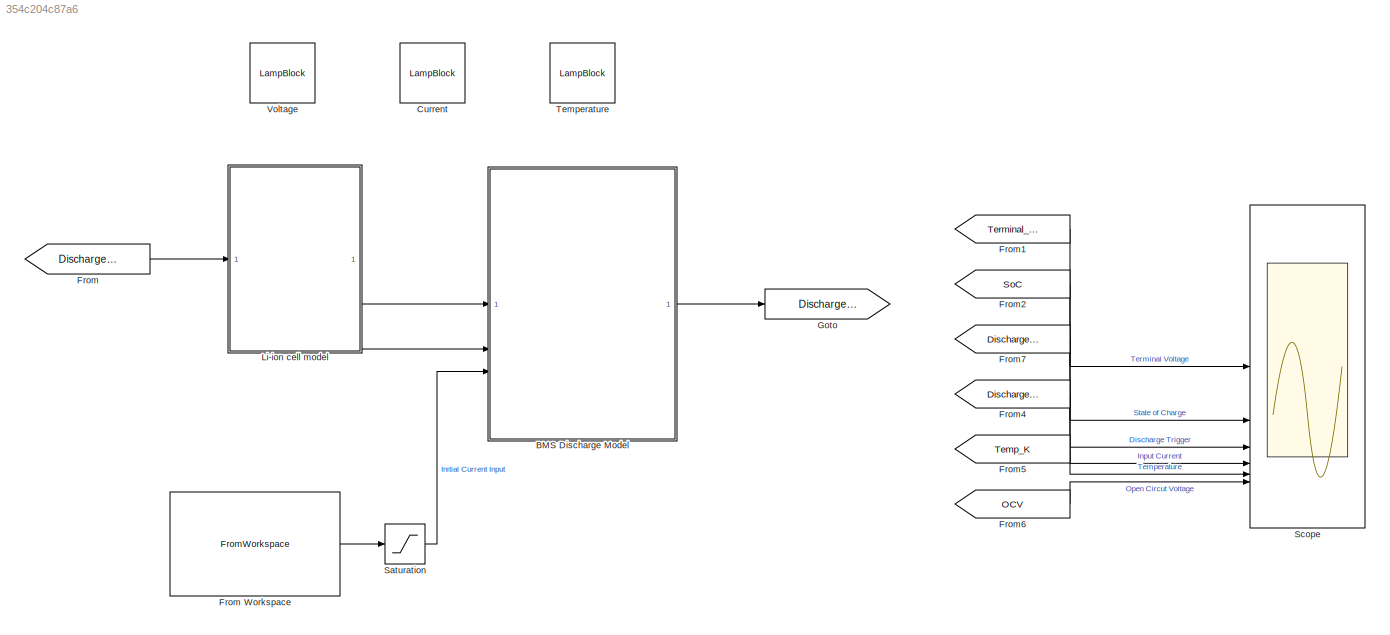
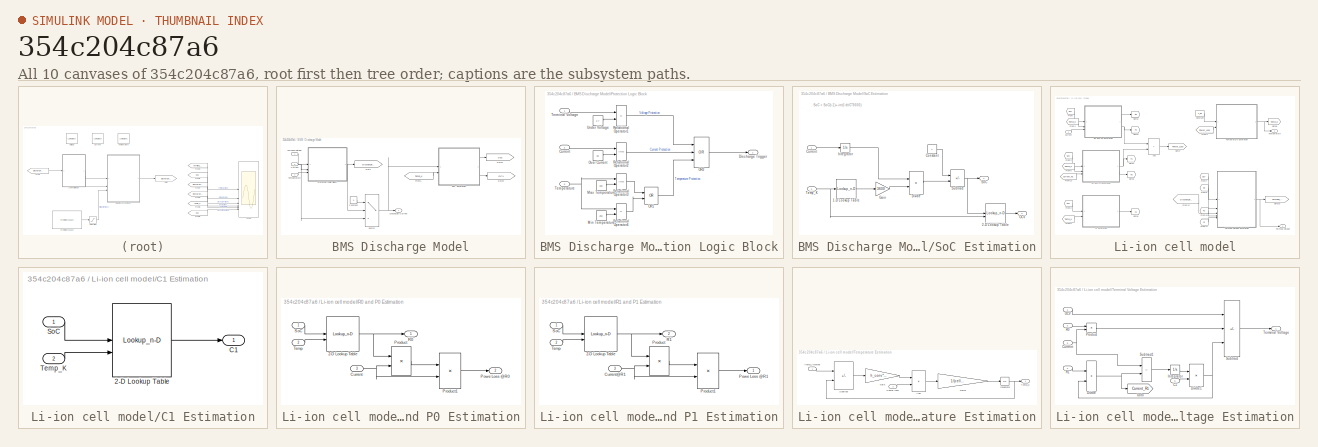
[diagram: thumbnail index - all 10 canvases of the model, root first then tree order]
MODEL slx_354c204c87a6
KIND model
CONFIG AbsTol = auto
CONFIG EnableMultiTasking = off
CONFIG FixedStep = auto
CONFIG MaxStep = auto
CONFIG MinStep = auto
CONFIG RelTol = 1e-3
CONFIG SampleTimeConstraint = Unconstrained
CONFIG SolverName = ode45
CONFIG StartTime = 0.0
CONFIG StopTime = 1180
BLOCK [SubSystem] BMS Discharge Model
BLOCK [Constant] BMS Discharge Model/Constant
  Value = 0
BLOCK [Inport] BMS Discharge Model/Current
  Port = 3
BLOCK [Outport] BMS Discharge Model/Discharge Current
BLOCK [From] BMS Discharge Model/From1
  GotoTag = Temp_K
  TagVisibility = global
BLOCK [Goto] BMS Discharge Model/Goto
  GotoTag = Discharge_Trigger
  TagVisibility = global
BLOCK [Goto] BMS Discharge Model/Goto1
  GotoTag = SoC
  TagVisibility = global
BLOCK [Goto] BMS Discharge Model/Goto2
  GotoTag = OCV
  TagVisibility = global
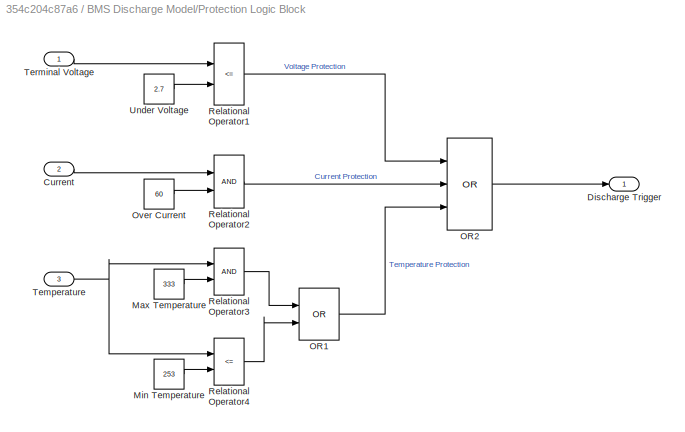
BLOCK [SubSystem] BMS Discharge Model/Protection Logic Block
BLOCK [Inport] BMS Discharge Model/Protection Logic Block/Current
  Port = 2
BLOCK [Outport] BMS Discharge Model/Protection Logic Block/Discharge Trigger
BLOCK [Constant] BMS Discharge Model/Protection Logic Block/Max Temperature
  Value = 333
BLOCK [Constant] BMS Discharge Model/Protection Logic Block/Min Temperature
  Value = 253
BLOCK [Logic] BMS Discharge Model/Protection Logic Block/OR1
  AllPortsSameDT = off
  IconShape = distinctive
  Operator = OR
  OutDataTypeStr = boolean
BLOCK [Logic] BMS Discharge Model/Protection Logic Block/OR2
  AllPortsSameDT = off
  IconShape = distinctive
  Inputs = 3
  Operator = OR
  OutDataTypeStr = boolean
BLOCK [Constant] BMS Discharge Model/Protection Logic Block/Over Current
  Value = 60
BLOCK [RelationalOperator] BMS Discharge Model/Protection Logic Block/Relational Operator1
  InputSameDT = off
  Operator = <=
  OutDataTypeStr = boolean
  RndMeth = Simplest
BLOCK [RelationalOperator] BMS Discharge Model/Protection Logic Block/Relational Operator2
  InputSameDT = off
  OutDataTypeStr = boolean
  RndMeth = Simplest
BLOCK [RelationalOperator] BMS Discharge Model/Protection Logic Block/Relational Operator3
  InputSameDT = off
  OutDataTypeStr = boolean
  RndMeth = Simplest
BLOCK [RelationalOperator] BMS Discharge Model/Protection Logic Block/Relational Operator4
  InputSameDT = off
  Operator = <=
  OutDataTypeStr = boolean
  RndMeth = Simplest
BLOCK [Inport] BMS Discharge Model/Protection Logic Block/Temperature
  Port = 3
BLOCK [Inport] BMS Discharge Model/Protection Logic Block/Terminal Voltage
BLOCK [Constant] BMS Discharge Model/Protection Logic Block/Under Voltage
  Value = 2.7
BLOCK [SubSystem] BMS Discharge Model/SoC Estimation
BLOCK [Lookup_n-D] BMS Discharge Model/SoC Estimation/1-D Lookup Table
  BreakpointsForDimension1 = Temperature_LUT
  InputPortMap = u0
  InternalRulePriority = Speed
  NumberOfTableDimensions = 1
  RndMeth = Simplest
  Table = Capacity_LUT
BLOCK [Lookup_n-D] BMS Discharge Model/SoC Estimation/2-D Lookup Table
  BreakpointsForDimension1 = SOC_LUT
  BreakpointsForDimension2 = Temperature_LUT
  InputPortMap = u0,u1
  InternalRulePriority = Speed
  RndMeth = Simplest
  Table = Em_LUT
BLOCK [Constant] BMS Discharge Model/SoC Estimation/Constant
BLOCK [Inport] BMS Discharge Model/SoC Estimation/Current
BLOCK [Product] BMS Discharge Model/SoC Estimation/Divide
  Inputs = */
BLOCK [Gain] BMS Discharge Model/SoC Estimation/Gain
  Gain = 3600
BLOCK [Integrator] BMS Discharge Model/SoC Estimation/Integrator
BLOCK [Outport] BMS Discharge Model/SoC Estimation/OCV
  Port = 2
BLOCK [Outport] BMS Discharge Model/SoC Estimation/SoC
BLOCK [Sum] BMS Discharge Model/SoC Estimation/Subtract
  IconShape = rectangular
  Inputs = +-
BLOCK [Inport] BMS Discharge Model/SoC Estimation/Temp_K
  Port = 2
BLOCK [Switch] BMS Discharge Model/Switch
  Criteria = u2 ~= 0
  InputSameDT = off
  SaturateOnIntegerOverflow = off
BLOCK [Inport] BMS Discharge Model/Temperature
  Port = 2
BLOCK [Inport] BMS Discharge Model/Terminal Voltage
BLOCK [LampBlock] Current
  LabelPosition = Hide
BLOCK [From] From
  GotoTag = Discharge_Current
  TagVisibility = global
BLOCK [FromWorkspace] From Workspace
  VariableName = Current
BLOCK [From] From1
  GotoTag = Terminal_Voltage
  TagVisibility = global
BLOCK [From] From2
  GotoTag = SoC
  TagVisibility = global
BLOCK [From] From4
  GotoTag = Discharge_Current
  TagVisibility = global
BLOCK [From] From5
  GotoTag = Temp_K
  TagVisibility = global
BLOCK [From] From6
  GotoTag = OCV
  TagVisibility = global
BLOCK [From] From7
  GotoTag = Discharge_Trigger
  TagVisibility = global
BLOCK [Goto] Goto
  GotoTag = Discharge_Current
  TagVisibility = global
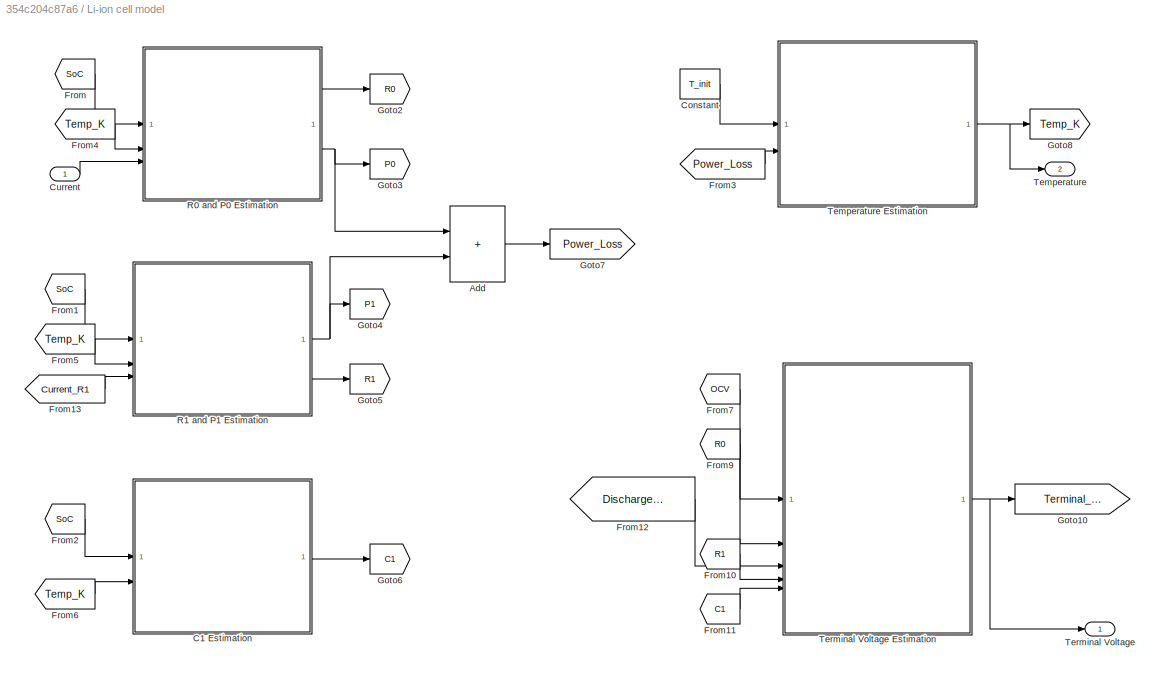
BLOCK [SubSystem] Li-ion cell model
BLOCK [Sum] Li-ion cell model/Add
  IconShape = rectangular
BLOCK [SubSystem] Li-ion cell model/C1 Estimation
BLOCK [Lookup_n-D] Li-ion cell model/C1 Estimation/2-D Lookup Table
  BreakpointsForDimension1 = SOC_LUT
  BreakpointsForDimension2 = Temperature_LUT
  InputPortMap = u0,u1
  InternalRulePriority = Speed
  RndMeth = Simplest
  Table = C1_LUT
BLOCK [Outport] Li-ion cell model/C1 Estimation/C1
BLOCK [Inport] Li-ion cell model/C1 Estimation/SoC
BLOCK [Inport] Li-ion cell model/C1 Estimation/Temp_K
  Port = 2
BLOCK [Constant] Li-ion cell model/Constant
  Value = T_init
BLOCK [Inport] Li-ion cell model/Current
BLOCK [From] Li-ion cell model/From
  GotoTag = SoC
  TagVisibility = global
BLOCK [From] Li-ion cell model/From1
  GotoTag = SoC
  TagVisibility = global
BLOCK [From] Li-ion cell model/From10
  GotoTag = R1
  TagVisibility = global
BLOCK [From] Li-ion cell model/From11
  GotoTag = C1
  TagVisibility = global
BLOCK [From] Li-ion cell model/From12
  GotoTag = Discharge_Current
  TagVisibility = global
BLOCK [From] Li-ion cell model/From13
  GotoTag = Current_R1
  TagVisibility = global
BLOCK [From] Li-ion cell model/From2
  GotoTag = SoC
  TagVisibility = global
BLOCK [From] Li-ion cell model/From3
  GotoTag = Power_Loss
  TagVisibility = global
BLOCK [From] Li-ion cell model/From4
  GotoTag = Temp_K
  TagVisibility = global
BLOCK [From] Li-ion cell model/From5
  GotoTag = Temp_K
  TagVisibility = global
BLOCK [From] Li-ion cell model/From6
  GotoTag = Temp_K
  TagVisibility = global
BLOCK [From] Li-ion cell model/From7
  GotoTag = OCV
  TagVisibility = global
BLOCK [From] Li-ion cell model/From9
  GotoTag = R0
  TagVisibility = global
BLOCK [Goto] Li-ion cell model/Goto10
  GotoTag = Terminal_Voltage
  TagVisibility = global
BLOCK [Goto] Li-ion cell model/Goto2
  GotoTag = R0
  TagVisibility = global
BLOCK [Goto] Li-ion cell model/Goto3
  GotoTag = P0
  TagVisibility = global
BLOCK [Goto] Li-ion cell model/Goto4
  GotoTag = P1
  TagVisibility = global
BLOCK [Goto] Li-ion cell model/Goto5
  GotoTag = R1
  TagVisibility = global
BLOCK [Goto] Li-ion cell model/Goto6
  GotoTag = C1
  TagVisibility = global
BLOCK [Goto] Li-ion cell model/Goto7
  GotoTag = Power_Loss
  TagVisibility = global
BLOCK [Goto] Li-ion cell model/Goto8
  GotoTag = Temp_K
  TagVisibility = global
BLOCK [SubSystem] Li-ion cell model/R0 and P0 Estimation
BLOCK [Lookup_n-D] Li-ion cell model/R0 and P0 Estimation/2-D Lookup Table
  BreakpointsForDimension1 = SOC_LUT
  BreakpointsForDimension2 = Temperature_LUT
  InputPortMap = u0,u1
  InternalRulePriority = Speed
  RndMeth = Simplest
  Table = R0_LUT
BLOCK [Inport] Li-ion cell model/R0 and P0 Estimation/Current
  Port = 3
BLOCK [Outport] Li-ion cell model/R0 and P0 Estimation/Powe Loss @R0
  Port = 2
BLOCK [Product] Li-ion cell model/R0 and P0 Estimation/Product
BLOCK [Product] Li-ion cell model/R0 and P0 Estimation/Product1
BLOCK [Outport] Li-ion cell model/R0 and P0 Estimation/R0
BLOCK [Inport] Li-ion cell model/R0 and P0 Estimation/SoC
BLOCK [Inport] Li-ion cell model/R0 and P0 Estimation/Temp
  Port = 2
BLOCK [SubSystem] Li-ion cell model/R1 and P1 Estimation
BLOCK [Lookup_n-D] Li-ion cell model/R1 and P1 Estimation/2-D Lookup Table
  BreakpointsForDimension1 = SOC_LUT
  BreakpointsForDimension2 = Temperature_LUT
  InputPortMap = u0,u1
  InternalRulePriority = Speed
  RndMeth = Simplest
  Table = R1_LUT
BLOCK [Inport] Li-ion cell model/R1 and P1 Estimation/Current@R1
  Port = 3
BLOCK [Outport] Li-ion cell model/R1 and P1 Estimation/Powe Loss @R1
BLOCK [Product] Li-ion cell model/R1 and P1 Estimation/Product
BLOCK [Product] Li-ion cell model/R1 and P1 Estimation/Product1
BLOCK [Outport] Li-ion cell model/R1 and P1 Estimation/R1
  Port = 2
BLOCK [Inport] Li-ion cell model/R1 and P1 Estimation/SoC
BLOCK [Inport] Li-ion cell model/R1 and P1 Estimation/Temp
  Port = 2
BLOCK [Outport] Li-ion cell model/Temperature
  Port = 2
BLOCK [SubSystem] Li-ion cell model/Temperature Estimation
BLOCK [Sum] Li-ion cell model/Temperature Estimation/Add
  IconShape = rectangular
BLOCK [Gain] Li-ion cell model/Temperature Estimation/Gain
  Gain = h_conv*cell_area
BLOCK [Gain] Li-ion cell model/Temperature Estimation/Gain1
  Gain = 1/(cell_cp_heat*cell_mass)
BLOCK [Integrator] Li-ion cell model/Temperature Estimation/Integrator
  InitialCondition = 293.15
BLOCK [Inport] Li-ion cell model/Temperature Estimation/Power Loss
  Port = 2
BLOCK [Sum] Li-ion cell model/Temperature Estimation/Subtract
  IconShape = rectangular
  Inputs = +-
BLOCK [Inport] Li-ion cell model/Temperature Estimation/Temp_Ambient
BLOCK [Outport] Li-ion cell model/Temperature Estimation/Temp_K
BLOCK [Outport] Li-ion cell model/Terminal Voltage
BLOCK [SubSystem] Li-ion cell model/Terminal Voltage Estimation
BLOCK [Inport] Li-ion cell model/Terminal Voltage Estimation/C1
  Port = 5
BLOCK [Inport] Li-ion cell model/Terminal Voltage Estimation/Current
  Port = 3
BLOCK [Product] Li-ion cell model/Terminal Voltage Estimation/Divide
  Inputs = /*
BLOCK [Product] Li-ion cell model/Terminal Voltage Estimation/Divide1
  Inputs = */
BLOCK [Goto] Li-ion cell model/Terminal Voltage Estimation/Goto
  GotoTag = Current_R1
  TagVisibility = global
BLOCK [Integrator] Li-ion cell model/Terminal Voltage Estimation/Integrator
BLOCK [Inport] Li-ion cell model/Terminal Voltage Estimation/OCV
BLOCK [Product] Li-ion cell model/Terminal Voltage Estimation/Product
BLOCK [Inport] Li-ion cell model/Terminal Voltage Estimation/R0
  Port = 2
BLOCK [Inport] Li-ion cell model/Terminal Voltage Estimation/R1
  Port = 4
BLOCK [Sum] Li-ion cell model/Terminal Voltage Estimation/Subtract
  IconShape = rectangular
  Inputs = +--
BLOCK [Sum] Li-ion cell model/Terminal Voltage Estimation/Subtract1
  IconShape = rectangular
  Inputs = +-
BLOCK [Outport] Li-ion cell model/Terminal Voltage Estimation/Terminal Voltage
BLOCK [Saturate] Saturation
  LowerLimit = 0
  UpperLimit = +inf
BLOCK [Scope] Scope
  Floating = off
  NumInputPorts = 6
  ScopeSpecificationString = Simulink.scopes.TimeScopeBlockCfg('CurrentConfiguration', extmgr.ConfigurationSet(extmgr.Configuration('Core','General UI',true),extmgr.Configuration('Core','Source UI',true),extmgr.Configuration('Sources','WiredSimulink',true),extmgr.Configuration('Visuals','Time Domain',true,'SerializedDisplays',{struct('MinYLimReal','3.69074','MaxYLimReal','4.24547','YLabelReal','','MinYLimMag','3.69074','MaxYL...<+6153ch>
BLOCK [LampBlock] Temperature
  LabelPosition = Hide
BLOCK [LampBlock] Voltage
  LabelPosition = Hide
ANNOTATION BMS Discharge Model/SoC Estimation: SoC = SoC(t-1)+-int(I dt/C*3600)
LINE BMS Discharge Model/Constant:1 -> BMS Discharge Model/Switch:1
NET BMS Discharge Model/Current:1 -> BMS Discharge Model/Protection Logic Block:2, BMS Discharge Model/Switch:3
LINE BMS Discharge Model/From1:1 -> BMS Discharge Model/SoC Estimation:2
LINE BMS Discharge Model/Protection Logic Block/Current:1 -> BMS Discharge Model/Protection Logic Block/Relational Operator2:1
LINE BMS Discharge Model/Protection Logic Block/Max Temperature:1 -> BMS Discharge Model/Protection Logic Block/Relational Operator3:2
LINE BMS Discharge Model/Protection Logic Block/Min Temperature:1 -> BMS Discharge Model/Protection Logic Block/Relational Operator4:2
LINE BMS Discharge Model/Protection Logic Block/OR1:1 -> BMS Discharge Model/Protection Logic Block/OR2:3
LINE BMS Discharge Model/Protection Logic Block/OR2:1 -> BMS Discharge Model/Protection Logic Block/Discharge Trigger:1
LINE BMS Discharge Model/Protection Logic Block/Over Current:1 -> BMS Discharge Model/Protection Logic Block/Relational Operator2:2
LINE BMS Discharge Model/Protection Logic Block/Relational Operator1:1 -> BMS Discharge Model/Protection Logic Block/OR2:1
LINE BMS Discharge Model/Protection Logic Block/Relational Operator2:1 -> BMS Discharge Model/Protection Logic Block/OR2:2
LINE BMS Discharge Model/Protection Logic Block/Relational Operator3:1 -> BMS Discharge Model/Protection Logic Block/OR1:1
LINE BMS Discharge Model/Protection Logic Block/Relational Operator4:1 -> BMS Discharge Model/Protection Logic Block/OR1:2
NET BMS Discharge Model/Protection Logic Block/Temperature:1 -> BMS Discharge Model/Protection Logic Block/Relational Operator3:1, BMS Discharge Model/Protection Logic Block/Relational Operator4:1
LINE BMS Discharge Model/Protection Logic Block/Terminal Voltage:1 -> BMS Discharge Model/Protection Logic Block/Relational Operator1:1
LINE BMS Discharge Model/Protection Logic Block/Under Voltage:1 -> BMS Discharge Model/Protection Logic Block/Relational Operator1:2
NET BMS Discharge Model/Protection Logic Block:1 -> BMS Discharge Model/Goto:1, BMS Discharge Model/Switch:2
LINE BMS Discharge Model/SoC Estimation/1-D Lookup Table:1 -> BMS Discharge Model/SoC Estimation/Gain:1
LINE BMS Discharge Model/SoC Estimation/2-D Lookup Table:1 -> BMS Discharge Model/SoC Estimation/OCV:1
LINE BMS Discharge Model/SoC Estimation/Constant:1 -> BMS Discharge Model/SoC Estimation/Subtract:1
LINE BMS Discharge Model/SoC Estimation/Current:1 -> BMS Discharge Model/SoC Estimation/Integrator:1
LINE BMS Discharge Model/SoC Estimation/Divide:1 -> BMS Discharge Model/SoC Estimation/Subtract:2
LINE BMS Discharge Model/SoC Estimation/Gain:1 -> BMS Discharge Model/SoC Estimation/Divide:2
LINE BMS Discharge Model/SoC Estimation/Integrator:1 -> BMS Discharge Model/SoC Estimation/Divide:1
NET BMS Discharge Model/SoC Estimation/Subtract:1 -> BMS Discharge Model/SoC Estimation/2-D Lookup Table:1, BMS Discharge Model/SoC Estimation/SoC:1
NET BMS Discharge Model/SoC Estimation/Temp_K:1 -> BMS Discharge Model/SoC Estimation/1-D Lookup Table:1, BMS Discharge Model/SoC Estimation/2-D Lookup Table:2
LINE BMS Discharge Model/SoC Estimation:1 -> BMS Discharge Model/Goto1:1
LINE BMS Discharge Model/SoC Estimation:2 -> BMS Discharge Model/Goto2:1
NET BMS Discharge Model/Switch:1 -> BMS Discharge Model/Discharge Current:1, BMS Discharge Model/SoC Estimation:1
LINE BMS Discharge Model/Temperature:1 -> BMS Discharge Model/Protection Logic Block:3
LINE BMS Discharge Model/Terminal Voltage:1 -> BMS Discharge Model/Protection Logic Block:1
LINE BMS Discharge Model:1 -> Goto:1
LINE From Workspace:1 -> Saturation:1
LINE From1:1 -> Scope:1
LINE From2:1 -> Scope:2
LINE From4:1 -> Scope:4
LINE From5:1 -> Scope:5
LINE From6:1 -> Scope:6
LINE From7:1 -> Scope:3
LINE From:1 -> Li-ion cell model:1
LINE Li-ion cell model/Add:1 -> Li-ion cell model/Goto7:1
LINE Li-ion cell model/C1 Estimation/2-D Lookup Table:1 -> Li-ion cell model/C1 Estimation/C1:1
LINE Li-ion cell model/C1 Estimation/SoC:1 -> Li-ion cell model/C1 Estimation/2-D Lookup Table:1
LINE Li-ion cell model/C1 Estimation/Temp_K:1 -> Li-ion cell model/C1 Estimation/2-D Lookup Table:2
LINE Li-ion cell model/C1 Estimation:1 -> Li-ion cell model/Goto6:1
LINE Li-ion cell model/Constant:1 -> Li-ion cell model/Temperature Estimation:1
LINE Li-ion cell model/Current:1 -> Li-ion cell model/R0 and P0 Estimation:3
LINE Li-ion cell model/From10:1 -> Li-ion cell model/Terminal Voltage Estimation:4
LINE Li-ion cell model/From11:1 -> Li-ion cell model/Terminal Voltage Estimation:5
LINE Li-ion cell model/From12:1 -> Li-ion cell model/Terminal Voltage Estimation:3
LINE Li-ion cell model/From13:1 -> Li-ion cell model/R1 and P1 Estimation:3
LINE Li-ion cell model/From1:1 -> Li-ion cell model/R1 and P1 Estimation:1
LINE Li-ion cell model/From2:1 -> Li-ion cell model/C1 Estimation:1
LINE Li-ion cell model/From3:1 -> Li-ion cell model/Temperature Estimation:2
LINE Li-ion cell model/From4:1 -> Li-ion cell model/R0 and P0 Estimation:2
LINE Li-ion cell model/From5:1 -> Li-ion cell model/R1 and P1 Estimation:2
LINE Li-ion cell model/From6:1 -> Li-ion cell model/C1 Estimation:2
LINE Li-ion cell model/From7:1 -> Li-ion cell model/Terminal Voltage Estimation:1
LINE Li-ion cell model/From9:1 -> Li-ion cell model/Terminal Voltage Estimation:2
LINE Li-ion cell model/From:1 -> Li-ion cell model/R0 and P0 Estimation:1
NET Li-ion cell model/R0 and P0 Estimation/2-D Lookup Table:1 -> Li-ion cell model/R0 and P0 Estimation/Product:1, Li-ion cell model/R0 and P0 Estimation/R0:1
NET Li-ion cell model/R0 and P0 Estimation/Current:1 -> Li-ion cell model/R0 and P0 Estimation/Product1:2, Li-ion cell model/R0 and P0 Estimation/Product:2
LINE Li-ion cell model/R0 and P0 Estimation/Product1:1 -> Li-ion cell model/R0 and P0 Estimation/Powe Loss @R0:1
LINE Li-ion cell model/R0 and P0 Estimation/Product:1 -> Li-ion cell model/R0 and P0 Estimation/Product1:1
LINE Li-ion cell model/R0 and P0 Estimation/SoC:1 -> Li-ion cell model/R0 and P0 Estimation/2-D Lookup Table:1
LINE Li-ion cell model/R0 and P0 Estimation/Temp:1 -> Li-ion cell model/R0 and P0 Estimation/2-D Lookup Table:2
LINE Li-ion cell model/R0 and P0 Estimation:1 -> Li-ion cell model/Goto2:1
NET Li-ion cell model/R0 and P0 Estimation:2 -> Li-ion cell model/Add:1, Li-ion cell model/Goto3:1
NET Li-ion cell model/R1 and P1 Estimation/2-D Lookup Table:1 -> Li-ion cell model/R1 and P1 Estimation/Product:1, Li-ion cell model/R1 and P1 Estimation/R1:1
NET Li-ion cell model/R1 and P1 Estimation/Current@R1:1 -> Li-ion cell model/R1 and P1 Estimation/Product1:2, Li-ion cell model/R1 and P1 Estimation/Product:2
LINE Li-ion cell model/R1 and P1 Estimation/Product1:1 -> Li-ion cell model/R1 and P1 Estimation/Powe Loss @R1:1
LINE Li-ion cell model/R1 and P1 Estimation/Product:1 -> Li-ion cell model/R1 and P1 Estimation/Product1:1
LINE Li-ion cell model/R1 and P1 Estimation/SoC:1 -> Li-ion cell model/R1 and P1 Estimation/2-D Lookup Table:1
LINE Li-ion cell model/R1 and P1 Estimation/Temp:1 -> Li-ion cell model/R1 and P1 Estimation/2-D Lookup Table:2
NET Li-ion cell model/R1 and P1 Estimation:1 -> Li-ion cell model/Add:2, Li-ion cell model/Goto4:1
LINE Li-ion cell model/R1 and P1 Estimation:2 -> Li-ion cell model/Goto5:1
LINE Li-ion cell model/Temperature Estimation/Add:1 -> Li-ion cell model/Temperature Estimation/Gain1:1
LINE Li-ion cell model/Temperature Estimation/Gain1:1 -> Li-ion cell model/Temperature Estimation/Integrator:1
LINE Li-ion cell model/Temperature Estimation/Gain:1 -> Li-ion cell model/Temperature Estimation/Add:1
NET Li-ion cell model/Temperature Estimation/Integrator:1 -> Li-ion cell model/Temperature Estimation/Subtract:2, Li-ion cell model/Temperature Estimation/Temp_K:1
LINE Li-ion cell model/Temperature Estimation/Power Loss:1 -> Li-ion cell model/Temperature Estimation/Add:2
LINE Li-ion cell model/Temperature Estimation/Subtract:1 -> Li-ion cell model/Temperature Estimation/Gain:1
LINE Li-ion cell model/Temperature Estimation/Temp_Ambient:1 -> Li-ion cell model/Temperature Estimation/Subtract:1
NET Li-ion cell model/Temperature Estimation:1 -> Li-ion cell model/Goto8:1, Li-ion cell model/Temperature:1
LINE Li-ion cell model/Terminal Voltage Estimation/C1:1 -> Li-ion cell model/Terminal Voltage Estimation/Divide1:2
NET Li-ion cell model/Terminal Voltage Estimation/Current:1 -> Li-ion cell model/Terminal Voltage Estimation/Product:2, Li-ion cell model/Terminal Voltage Estimation/Subtract1:1
NET Li-ion cell model/Terminal Voltage Estimation/Divide1:1 -> Li-ion cell model/Terminal Voltage Estimation/Divide:2, Li-ion cell model/Terminal Voltage Estimation/Subtract:3
NET Li-ion cell model/Terminal Voltage Estimation/Divide:1 -> Li-ion cell model/Terminal Voltage Estimation/Goto:1, Li-ion cell model/Terminal Voltage Estimation/Subtract1:2
LINE Li-ion cell model/Terminal Voltage Estimation/Integrator:1 -> Li-ion cell model/Terminal Voltage Estimation/Divide1:1
LINE Li-ion cell model/Terminal Voltage Estimation/OCV:1 -> Li-ion cell model/Terminal Voltage Estimation/Subtract:1
LINE Li-ion cell model/Terminal Voltage Estimation/Product:1 -> Li-ion cell model/Terminal Voltage Estimation/Subtract:2
LINE Li-ion cell model/Terminal Voltage Estimation/R0:1 -> Li-ion cell model/Terminal Voltage Estimation/Product:1
LINE Li-ion cell model/Terminal Voltage Estimation/R1:1 -> Li-ion cell model/Terminal Voltage Estimation/Divide:1
LINE Li-ion cell model/Terminal Voltage Estimation/Subtract1:1 -> Li-ion cell model/Terminal Voltage Estimation/Integrator:1
LINE Li-ion cell model/Terminal Voltage Estimation/Subtract:1 -> Li-ion cell model/Terminal Voltage Estimation/Terminal Voltage:1
NET Li-ion cell model/Terminal Voltage Estimation:1 -> Li-ion cell model/Goto10:1, Li-ion cell model/Terminal Voltage:1
LINE Li-ion cell model:1 -> BMS Discharge Model:1
LINE Li-ion cell model:2 -> BMS Discharge Model:2
LINE Saturation:1 -> BMS Discharge Model:3
note: NET lines group one-source signal fan-out (src -> all destinations, sorted); 1:1 wires keep LINE
